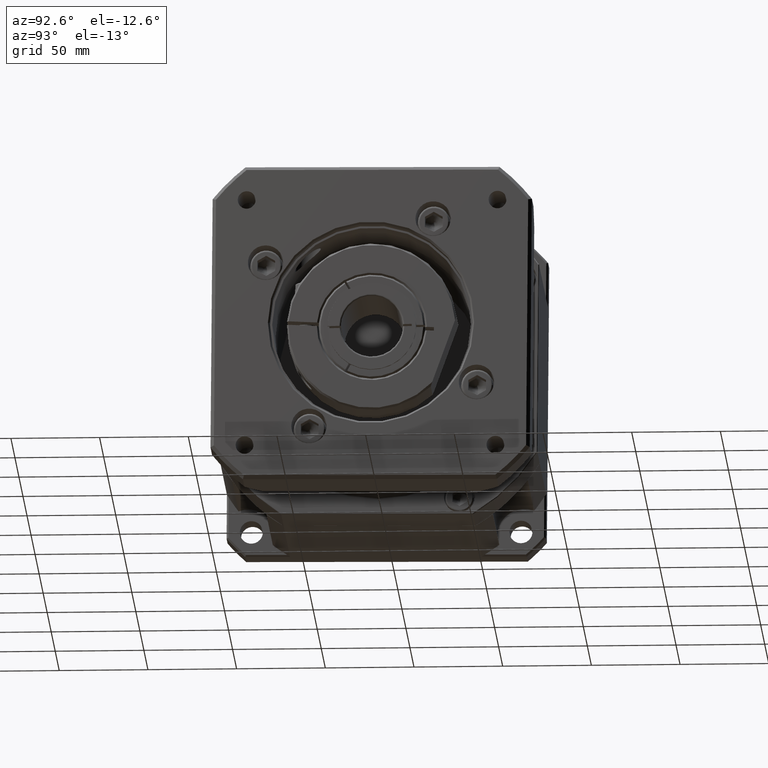
[diagram: clean part render]
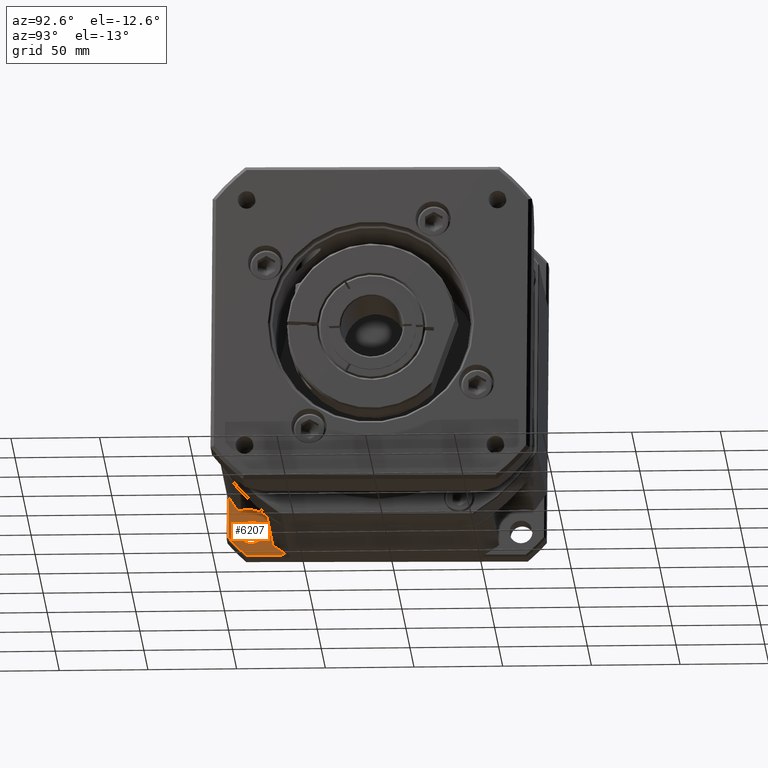
[diagram: same view with one face highlighted and labeled with its STEP entity id]
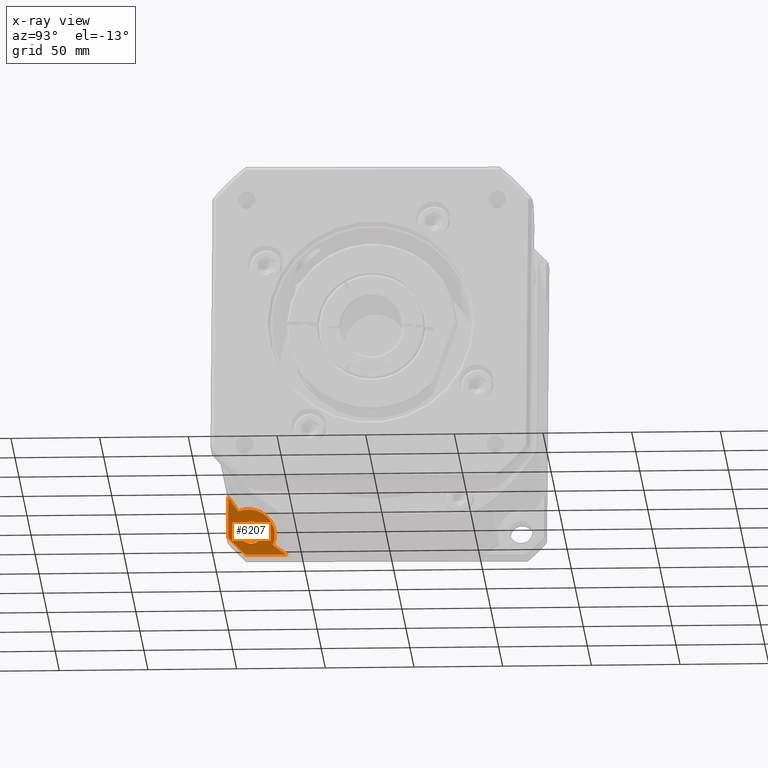
[diagram: x-ray of the same camera — body ghosted, the highlighted face saturated]
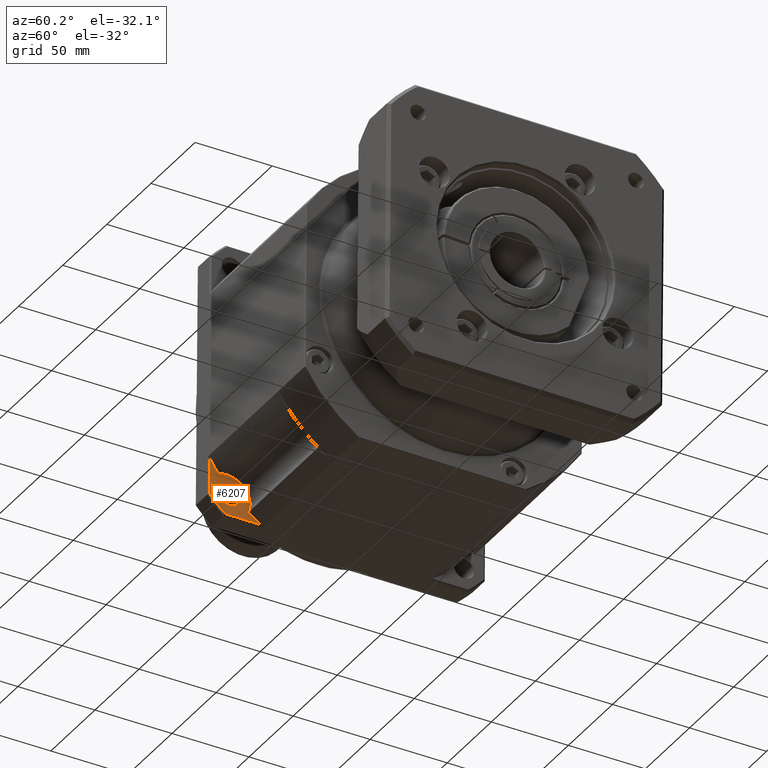
[diagram: same view with one face highlighted and labeled with its STEP entity id]
A machine part, auxiliary view. The second image highlights one B-rep face of the part: STEP entity #6207.
The next image is the same camera in x-ray: the body ghosted, the highlighted face saturated — about 3% of this face is hidden behind the body in this view.
A second angle (auxiliary view) of the same face is appended — the face is thin or edge-on in the first view.
In plain terms, the highlighted planar face has unit normal (1, 0, -0).
Its self-contained STEP definition (entity closure, byte-faithful):
#385=LINE('',#10285,#689);
#386=LINE('',#10288,#690);
#689=VECTOR('',#8206,23.2801175237895);
#690=VECTOR('',#8209,23.2801175237895);
#993=PLANE('',#6832);
#1162=FACE_BOUND('',#1976,.T.);
#1483=FACE_OUTER_BOUND('',#1975,.T.);
#1975=EDGE_LOOP('',(#4884,#4885,#4886,#4887,#4888,#4889));
#1976=EDGE_LOOP('',(#4890));
#2435=CIRCLE('',#6744,105.);
#2442=CIRCLE('',#6755,105.);
#2448=CIRCLE('',#6767,15.);
#2462=CIRCLE('',#6785,6.5);
#2483=CIRCLE('',#6833,119.);
#2914=VERTEX_POINT('',#10061);
#2916=VERTEX_POINT('',#10065);
#2923=VERTEX_POINT('',#10085);
#2924=VERTEX_POINT('',#10087);
#2943=VERTEX_POINT('',#10140);
#2972=VERTEX_POINT('',#10284);
#2973=VERTEX_POINT('',#10286);
#3586=EDGE_CURVE('',#2916,#2914,#2435,.T.);
#3596=EDGE_CURVE('',#2923,#2924,#2442,.T.);
#3609=EDGE_CURVE('',#2914,#2923,#2448,.T.);
#3623=EDGE_CURVE('',#2943,#2943,#2462,.T.);
#3675=EDGE_CURVE('',#2972,#2916,#385,.T.);
#3676=EDGE_CURVE('',#2973,#2972,#2483,.T.);
#3677=EDGE_CURVE('',#2924,#2973,#386,.T.);
#4884=ORIENTED_EDGE('',*,*,#3675,.F.);
#4885=ORIENTED_EDGE('',*,*,#3676,.F.);
#4886=ORIENTED_EDGE('',*,*,#3677,.F.);
#4887=ORIENTED_EDGE('',*,*,#3596,.F.);
#4888=ORIENTED_EDGE('',*,*,#3609,.F.);
#4889=ORIENTED_EDGE('',*,*,#3586,.F.);
#4890=ORIENTED_EDGE('',*,*,#3623,.T.);
#6207=ADVANCED_FACE('',(#1483,#1162),#993,.T.);
#6744=AXIS2_PLACEMENT_3D('',#10067,#8003,#8004);
#6755=AXIS2_PLACEMENT_3D('',#10088,#8027,#8028);
#6767=AXIS2_PLACEMENT_3D('',#10114,#8055,#8056);
#6785=AXIS2_PLACEMENT_3D('',#10141,#8091,#8092);
#6832=AXIS2_PLACEMENT_3D('',#10283,#8204,#8205);
#6833=AXIS2_PLACEMENT_3D('',#10287,#8207,#8208);
#8003=DIRECTION('center_axis',(1.,1.93538914479471E-16,-4.65376321555618E-16));
#8004=DIRECTION('ref_axis',(4.63731214385176E-16,0.00841499871866801,0.999964593271464));
#8027=DIRECTION('center_axis',(1.,1.93538914479471E-16,-4.65376321555618E-16));
#8028=DIRECTION('ref_axis',(4.63731214385176E-16,0.00841499871866801,0.999964593271464));
#8055=DIRECTION('center_axis',(-1.,-1.93538914479471E-16,4.65376321555618E-16));
#8056=DIRECTION('ref_axis',(1.97448203049254E-16,-0.999964593271464,0.00841499871866807));
#8091=DIRECTION('center_axis',(-1.,-1.93538914479471E-16,4.65376321555618E-16));
#8092=DIRECTION('ref_axis',(-1.97448203049254E-16,0.999964593271464,-0.00841499871866807));
#8204=DIRECTION('center_axis',(1.,1.93538914479471E-16,-4.65376321555618E-16));
#8205=DIRECTION('ref_axis',(0.,-0.00841499871866915,-0.999964593271464));
#8206=DIRECTION('',(4.63731214385176E-16,0.00841499871866801,0.999964593271464));
#8207=DIRECTION('center_axis',(-1.,-1.93538914479471E-16,4.65376321555618E-16));
#8208=DIRECTION('ref_axis',(-4.63731214385176E-16,-0.00841499871866801,
-0.999964593271464));
#8209=DIRECTION('',(1.97448203049254E-16,-0.999964593271464,0.00841499871866781));
#10061=CARTESIAN_POINT('',(-144.697071512777,-237.323101053479,-13.9582765782611));
#10065=CARTESIAN_POINT('',(-144.697071512777,-242.902093667605,-5.77011878169416));
#10067=CARTESIAN_POINT('Origin',(-144.697071512777,-153.436415388422,49.1925268064302));
#10085=CARTESIAN_POINT('',(-144.697071512777,-217.990037795141,-33.6194882286525));
#10087=CARTESIAN_POINT('',(-144.697071512777,-209.896930748469,-39.3354925167077));
#10088=CARTESIAN_POINT('Origin',(-144.697071512777,-153.436415388422,49.1925268064302));
#10114=CARTESIAN_POINT('Origin',(-144.697071512777,-231.86994061412,-27.9319318345858));
#10140=CARTESIAN_POINT('',(-144.697071512777,-236.587130351619,-26.1244057374368));
#10141=CARTESIAN_POINT('Origin',(-144.697071512777,-230.087360495354,-26.1791032291081));
#10283=CARTESIAN_POINT('Origin',(-144.697071512777,-153.436415388422,49.1925268064302));
#10284=CARTESIAN_POINT('',(-144.697071512777,-243.097995826738,-29.0494120326822));
#10285=CARTESIAN_POINT('',(-144.697071512777,-242.811939131922,4.94305499517574));
#10286=CARTESIAN_POINT('',(-144.697071512777,-233.176223999457,-39.1395903575745));
#10287=CARTESIAN_POINT('Origin',(-144.697071512777,-153.436415388422,49.1925268064302));
#10288=CARTESIAN_POINT('',(-144.697071512777,-109.186943577167,-40.1829969370702));